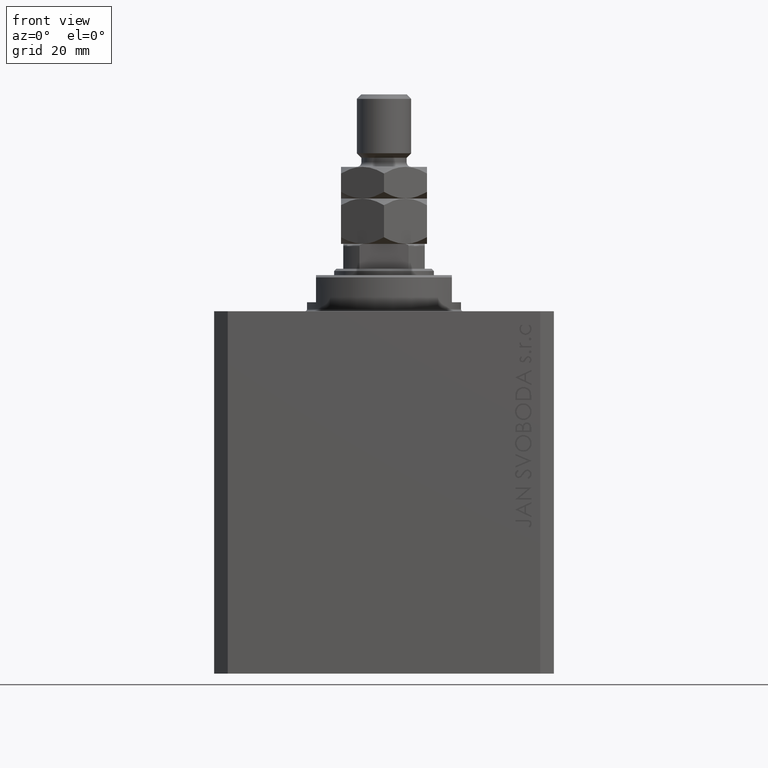
[diagram: clean part render]
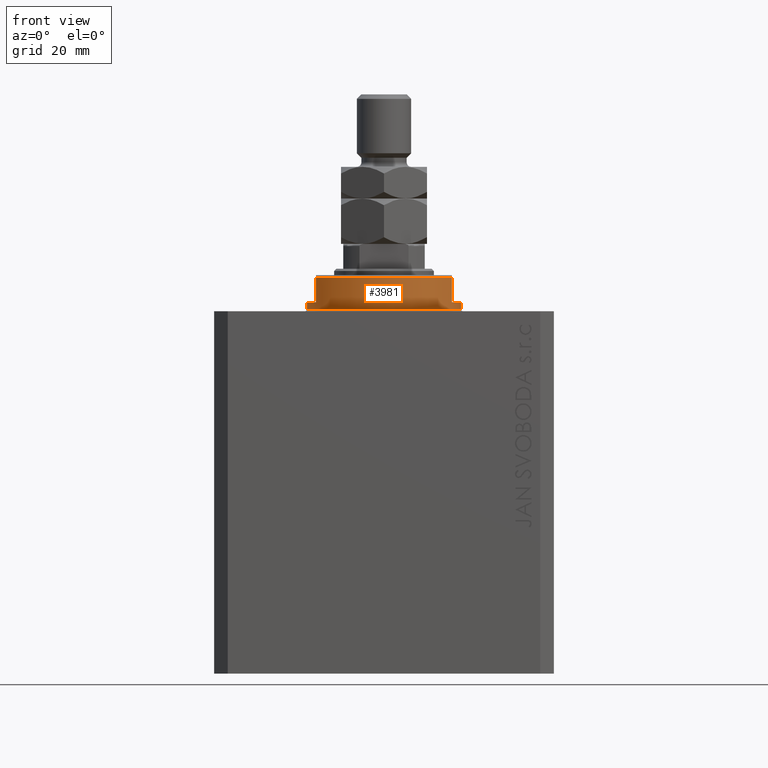
[diagram: same view with one face highlighted and labeled with its STEP entity id]
A machine part, front view. The second image highlights one B-rep face of the part: STEP entity #3981.
In plain terms, the highlighted cylindrical surface (partial cylindrical patch) has radius 17 mm, axis along (0, 0, -1).
Its self-contained STEP definition (entity closure, byte-faithful):
#254 = DIRECTION ( 'NONE',  ( -1.000000000000000000, 0.000000000000000000, 0.000000000000000000 ) ) ;
#269 = CARTESIAN_POINT ( 'NONE',  ( -17.00000000000000000, 2.081899558550500280E-15, -0.5000000000000004441 ) ) ;
#766 = CARTESIAN_POINT ( 'NONE',  ( 15.00000000000000000, -8.000000000000001776, -7.500000000000013323 ) ) ;
#777 = CARTESIAN_POINT ( 'NONE',  ( 15.00000000000000000, -8.000000000000001776, -8.000000000000000000 ) ) ;
#1477 = AXIS2_PLACEMENT_3D ( 'NONE', #44570, #48752, #2871 ) ;
#1620 = CARTESIAN_POINT ( 'NONE',  ( -17.00000000000000000, 2.081899558550500280E-15, -8.000000000000000000 ) ) ;
#1868 = CARTESIAN_POINT ( 'NONE',  ( -14.99999999999999645, -8.000000000000003553, -2.000000000000000000 ) ) ;
#2871 = DIRECTION ( 'NONE',  ( -1.000000000000000000, 0.000000000000000000, 0.000000000000000000 ) ) ;
#3981 = ADVANCED_FACE ( 'NONE', ( #32332 ), #20755, .T. ) ;
#4388 = CARTESIAN_POINT ( 'NONE',  ( 17.00000000000000000, 0.000000000000000000, -8.000000000000000000 ) ) ;
#4627 = DIRECTION ( 'NONE',  ( -0.000000000000000000, -0.000000000000000000, 1.000000000000000000 ) ) ;
#4936 = CARTESIAN_POINT ( 'NONE',  ( 0.000000000000000000, 0.000000000000000000, -7.500000000000013323 ) ) ;
#5337 = LINE ( 'NONE', #1620, #45278 ) ;
#5686 = AXIS2_PLACEMENT_3D ( 'NONE', #4936, #19482, #254 ) ;
#7930 = DIRECTION ( 'NONE',  ( 0.000000000000000000, 0.000000000000000000, -1.000000000000000000 ) ) ;
#8940 = DIRECTION ( 'NONE',  ( 1.000000000000000000, 0.000000000000000000, 0.000000000000000000 ) ) ;
#8967 = CARTESIAN_POINT ( 'NONE',  ( -15.00000000000000000, -8.000000000000001776, -7.500000000000014211 ) ) ;
#9630 = VECTOR ( 'NONE', #40695, 1000.000000000000000 ) ;
#9690 = VERTEX_POINT ( 'NONE', #28355 ) ;
#10877 = CARTESIAN_POINT ( 'NONE',  ( 0.000000000000000000, 0.000000000000000000, -2.000000000000000000 ) ) ;
#11397 = VERTEX_POINT ( 'NONE', #1868 ) ;
#11570 = CARTESIAN_POINT ( 'NONE',  ( 17.00000000000000000, 0.000000000000000000, -2.000000000000000000 ) ) ;
#16346 = EDGE_CURVE ( 'NONE', #11397, #48159, #40939, .T. ) ;
#17480 = ORIENTED_EDGE ( 'NONE', *, *, #16346, .T. ) ;
#17983 = AXIS2_PLACEMENT_3D ( 'NONE', #10877, #7930, #19250 ) ;
#19228 = VERTEX_POINT ( 'NONE', #26385 ) ;
#19250 = DIRECTION ( 'NONE',  ( -1.000000000000000000, 0.000000000000000000, 0.000000000000000000 ) ) ;
#19482 = DIRECTION ( 'NONE',  ( 0.000000000000000000, 0.000000000000000000, 1.000000000000000000 ) ) ;
#19721 = EDGE_CURVE ( 'NONE', #45588, #42764, #5337, .T. ) ;
#19852 = ORIENTED_EDGE ( 'NONE', *, *, #44197, .F. ) ;
#19891 = DIRECTION ( 'NONE',  ( -0.000000000000000000, -0.000000000000000000, 1.000000000000000000 ) ) ;
#20581 = ORIENTED_EDGE ( 'NONE', *, *, #30352, .T. ) ;
#20755 = CYLINDRICAL_SURFACE ( 'NONE', #40127, 17.00000000000000000 ) ;
#21621 = VERTEX_POINT ( 'NONE', #766 ) ;
#22415 = EDGE_LOOP ( 'NONE', ( #48107, #39723, #17480, #20581, #19852, #47074, #32861, #24849 ) ) ;
#24849 = ORIENTED_EDGE ( 'NONE', *, *, #44993, .T. ) ;
#24867 = LINE ( 'NONE', #777, #25077 ) ;
#25077 = VECTOR ( 'NONE', #39686, 1000.000000000000000 ) ;
#26385 = CARTESIAN_POINT ( 'NONE',  ( 14.99999999999999645, -8.000000000000003553, -2.000000000000000000 ) ) ;
#26626 = CIRCLE ( 'NONE', #17983, 17.00000000000000000 ) ;
#26760 = CARTESIAN_POINT ( 'NONE',  ( -17.00000000000000000, 2.081899558550500280E-15, -2.000000000000000000 ) ) ;
#26825 = LINE ( 'NONE', #4388, #39627 ) ;
#28355 = CARTESIAN_POINT ( 'NONE',  ( 17.00000000000000000, 0.000000000000000000, -0.5000000000000004441 ) ) ;
#29641 = EDGE_CURVE ( 'NONE', #47338, #9690, #26825, .T. ) ;
#29820 = CIRCLE ( 'NONE', #1477, 17.00000000000000000 ) ;
#30352 = EDGE_CURVE ( 'NONE', #48159, #21621, #45081, .T. ) ;
#31587 = EDGE_CURVE ( 'NONE', #11397, #45588, #26626, .T. ) ;
#32332 = FACE_OUTER_BOUND ( 'NONE', #22415, .T. ) ;
#32861 = ORIENTED_EDGE ( 'NONE', *, *, #29641, .T. ) ;
#33369 = DIRECTION ( 'NONE',  ( -0.000000000000000000, -0.000000000000000000, -1.000000000000000000 ) ) ;
#33751 = AXIS2_PLACEMENT_3D ( 'NONE', #47481, #33369, #39805 ) ;
#36751 = CARTESIAN_POINT ( 'NONE',  ( -15.00000000000000000, -8.000000000000001776, -8.000000000000000000 ) ) ;
#39627 = VECTOR ( 'NONE', #4627, 1000.000000000000000 ) ;
#39686 = DIRECTION ( 'NONE',  ( 0.000000000000000000, 0.000000000000000000, -1.000000000000000000 ) ) ;
#39723 = ORIENTED_EDGE ( 'NONE', *, *, #31587, .F. ) ;
#39805 = DIRECTION ( 'NONE',  ( 1.000000000000000000, 0.000000000000000000, 0.000000000000000000 ) ) ;
#40127 = AXIS2_PLACEMENT_3D ( 'NONE', #47422, #46689, #8940 ) ;
#40695 = DIRECTION ( 'NONE',  ( 0.000000000000000000, 0.000000000000000000, -1.000000000000000000 ) ) ;
#40939 = LINE ( 'NONE', #36751, #9630 ) ;
#41653 = CIRCLE ( 'NONE', #33751, 17.00000000000000000 ) ;
#42066 = EDGE_CURVE ( 'NONE', #47338, #19228, #29820, .T. ) ;
#42764 = VERTEX_POINT ( 'NONE', #269 ) ;
#44197 = EDGE_CURVE ( 'NONE', #19228, #21621, #24867, .T. ) ;
#44570 = CARTESIAN_POINT ( 'NONE',  ( 0.000000000000000000, 0.000000000000000000, -2.000000000000000000 ) ) ;
#44993 = EDGE_CURVE ( 'NONE', #9690, #42764, #41653, .T. ) ;
#45081 = CIRCLE ( 'NONE', #5686, 17.00000000000000000 ) ;
#45278 = VECTOR ( 'NONE', #19891, 1000.000000000000000 ) ;
#45588 = VERTEX_POINT ( 'NONE', #26760 ) ;
#46689 = DIRECTION ( 'NONE',  ( -0.000000000000000000, -0.000000000000000000, 1.000000000000000000 ) ) ;
#47074 = ORIENTED_EDGE ( 'NONE', *, *, #42066, .F. ) ;
#47338 = VERTEX_POINT ( 'NONE', #11570 ) ;
#47422 = CARTESIAN_POINT ( 'NONE',  ( 0.000000000000000000, 0.000000000000000000, -8.000000000000000000 ) ) ;
#47481 = CARTESIAN_POINT ( 'NONE',  ( 0.000000000000000000, 0.000000000000000000, -0.5000000000000004441 ) ) ;
#48107 = ORIENTED_EDGE ( 'NONE', *, *, #19721, .F. ) ;
#48159 = VERTEX_POINT ( 'NONE', #8967 ) ;
#48752 = DIRECTION ( 'NONE',  ( 0.000000000000000000, 0.000000000000000000, -1.000000000000000000 ) ) ;